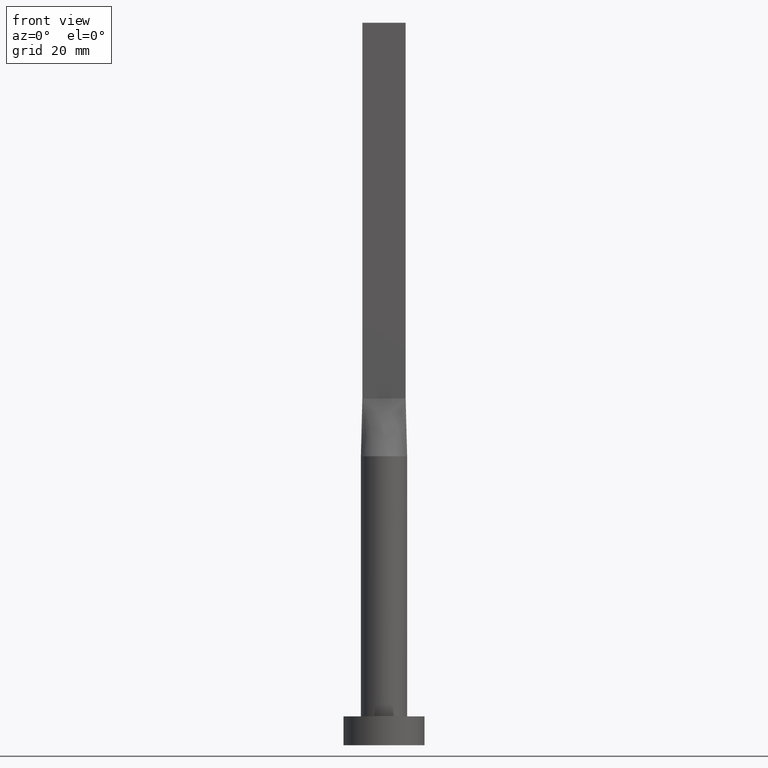
[diagram: clean part render]
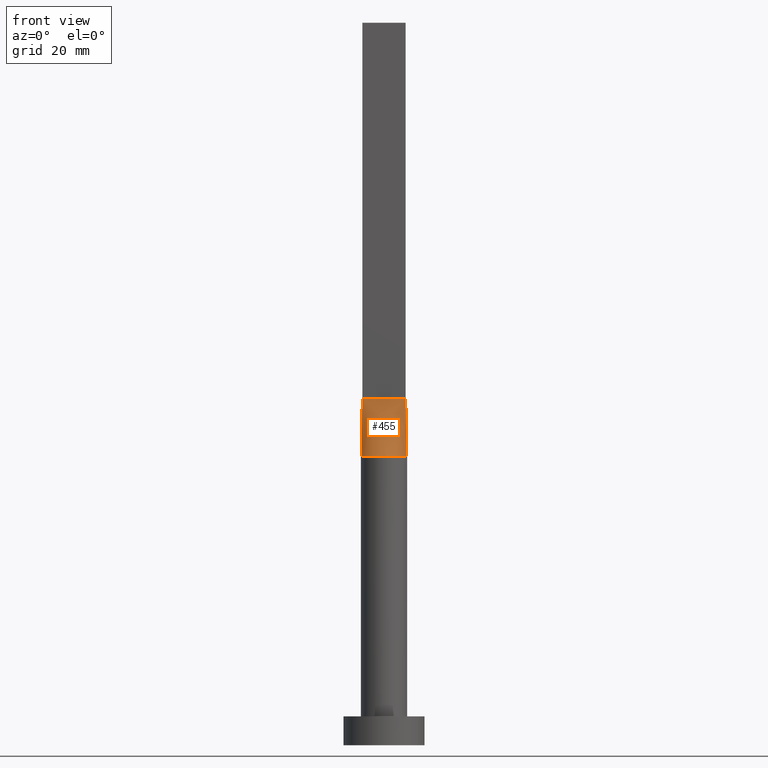
[diagram: same view with one face highlighted and labeled with its STEP entity id]
A machine part, front view. The second image highlights one B-rep face of the part: STEP entity #455.
In plain terms, the highlighted face is a freeform B-spline surface patch.
Its self-contained STEP definition (entity closure, byte-faithful):
#2 = CARTESIAN_POINT ( 'NONE',  ( -3.950111798046394007, -0.6320171791297864994, 49.99999999999999289 ) ) ;
#4 = VECTOR ( 'NONE', #518, 1000.000000000000000 ) ;
#10 = CARTESIAN_POINT ( 'NONE',  ( -3.750000000000000000, -0.5999999999999993117, 60.00000000000000000 ) ) ;
#20 = CARTESIAN_POINT ( 'NONE',  ( -2.500000000000000000, -0.5999999999999994227, 60.00000000000000000 ) ) ;
#24 = B_SPLINE_SURFACE_WITH_KNOTS ( 'NONE', 3, 1, ( 
 ( #411, #10 ),
 ( #377, #157 ),
 ( #243, #504 ),
 ( #420, #20 ),
 ( #549, #64 ),
 ( #201, #330 ),
 ( #110, #286 ),
 ( #479, #87 ),
 ( #142, #33 ),
 ( #212, #353 ),
 ( #398, #476 ),
 ( #579, #346 ),
 ( #184, #522 ),
 ( #83, #137 ),
 ( #395, #263 ),
 ( #42, #519 ),
 ( #299, #389 ),
 ( #526, #133 ) ),
 .UNSPECIFIED., .F., .F., .F.,
 ( 4, 2, 2, 2, 2, 2, 2, 2, 4 ),
 ( 2, 2 ),
 ( 0.000000000000000000, 0.1250000000000000555, 0.2500000000000001110, 0.3750000000000001665, 0.5000000000000001110, 0.6250000000000001110, 0.7500000000000001110, 0.8750000000000000000, 1.000000000000000000 ),
 ( 0.000000000000000000, 1.000000000000000000 ),
 .UNSPECIFIED. ) ;
#33 = CARTESIAN_POINT ( 'NONE',  ( -0.3125000000000008327, -0.5999999999999995337, 60.00000000000000000 ) ) ;
#42 = CARTESIAN_POINT ( 'NONE',  ( 3.800365609718893367, -1.311488165564686614, 49.99999999999998579 ) ) ;
#44 = LINE ( 'NONE', #268, #4 ) ;
#60 = CARTESIAN_POINT ( 'NONE',  ( -3.750000000000000000, -0.5999999999999993117, 60.00000000000000000 ) ) ;
#64 = CARTESIAN_POINT ( 'NONE',  ( -2.187500000000000000, -0.5999999999999994227, 60.00000000000000000 ) ) ;
#67 = EDGE_CURVE ( 'NONE', #386, #580, #554, .T. ) ;
#83 = CARTESIAN_POINT ( 'NONE',  ( 3.219262664220059023, -2.422342486356523938, 50.00000000000000000 ) ) ;
#87 = CARTESIAN_POINT ( 'NONE',  ( -0.6250000000000004441, -0.5999999999999994227, 60.00000000000000000 ) ) ;
#110 = CARTESIAN_POINT ( 'NONE',  ( -2.127794970397209884, -3.430476893735947996, 50.00000000000000000 ) ) ;
#133 = CARTESIAN_POINT ( 'NONE',  ( 3.750000000000000000, -0.5999999999999997558, 60.00000000000000000 ) ) ;
#134 = VERTEX_POINT ( 'NONE', #252 ) ;
#136 = CARTESIAN_POINT ( 'NONE',  ( -3.750000000000000000, -0.5999999999999993117, 60.00000000000000000 ) ) ;
#137 = CARTESIAN_POINT ( 'NONE',  ( 2.187499999999999556, -0.5999999999999996447, 60.00000000000000000 ) ) ;
#142 = CARTESIAN_POINT ( 'NONE',  ( -0.5684794080625156232, -4.000000000000000000, 49.99999999999998579 ) ) ;
#154 = VECTOR ( 'NONE', #468, 1000.000000000000000 ) ;
#157 = CARTESIAN_POINT ( 'NONE',  ( -3.437500000000000000, -0.5999999999999993117, 60.00000000000000000 ) ) ;
#184 = CARTESIAN_POINT ( 'NONE',  ( 2.553164211252348270, -3.116528153703943094, 49.99999999999999289 ) ) ;
#201 = CARTESIAN_POINT ( 'NONE',  ( -2.553164211252349158, -3.116528153703943094, 50.00000000000000711 ) ) ;
#204 = EDGE_CURVE ( 'NONE', #134, #363, #44, .T. ) ;
#207 = ORIENTED_EDGE ( 'NONE', *, *, #332, .T. ) ;
#212 = CARTESIAN_POINT ( 'NONE',  ( 0.5684794080625150681, -4.000000000000000888, 49.99999999999999289 ) ) ;
#235 = FACE_OUTER_BOUND ( 'NONE', #396, .T. ) ;
#237 = DIRECTION ( 'NONE',  ( 1.000000000000000000, 0.000000000000000000, 0.000000000000000000 ) ) ;
#243 = CARTESIAN_POINT ( 'NONE',  ( -3.800365609718892923, -1.311488165564685726, 49.99999999999998579 ) ) ;
#244 = VECTOR ( 'NONE', #356, 1000.000000000000000 ) ;
#246 = EDGE_CURVE ( 'NONE', #386, #363, #262, .T. ) ;
#252 = CARTESIAN_POINT ( 'NONE',  ( 3.950116941581656604, -0.6320178829360036943, 49.99999999999999289 ) ) ;
#262 = LINE ( 'NONE', #136, #244 ) ;
#263 = CARTESIAN_POINT ( 'NONE',  ( 2.499999999999998668, -0.5999999999999996447, 60.00000000000000000 ) ) ;
#268 = CARTESIAN_POINT ( 'NONE',  ( 3.849881263833410561, -0.6159810022133445084, 54.99999999999999289 ) ) ;
#272 = DIRECTION ( 'NONE',  ( 0.000000000000000000, 0.000000000000000000, 1.000000000000000000 ) ) ;
#286 = CARTESIAN_POINT ( 'NONE',  ( -1.250000000000000222, -0.5999999999999994227, 60.00000000000000000 ) ) ;
#299 = CARTESIAN_POINT ( 'NONE',  ( 3.897760447583619836, -0.9569750049467118380, 50.00000000000000711 ) ) ;
#330 = CARTESIAN_POINT ( 'NONE',  ( -1.562500000000000000, -0.5999999999999994227, 60.00000000000000000 ) ) ;
#332 = EDGE_CURVE ( 'NONE', #580, #134, #501, .T. ) ;
#336 = CARTESIAN_POINT ( 'NONE',  ( -3.849881263833410561, -0.6159810022133443974, 54.99999999999999289 ) ) ;
#346 = CARTESIAN_POINT ( 'NONE',  ( 1.249999999999999556, -0.5999999999999996447, 59.99999999999999289 ) ) ;
#353 = CARTESIAN_POINT ( 'NONE',  ( 0.3124999999999991118, -0.5999999999999995337, 59.99999999999999289 ) ) ;
#356 = DIRECTION ( 'NONE',  ( 1.000000000000000000, -5.782411586589357392E-17, 0.000000000000000000 ) ) ;
#358 = ORIENTED_EDGE ( 'NONE', *, *, #204, .T. ) ;
#363 = VERTEX_POINT ( 'NONE', #404 ) ;
#377 = CARTESIAN_POINT ( 'NONE',  ( -3.897760447583618948, -0.9569750049467102837, 49.99999999999999289 ) ) ;
#386 = VERTEX_POINT ( 'NONE', #60 ) ;
#389 = CARTESIAN_POINT ( 'NONE',  ( 3.437499999999999556, -0.5999999999999996447, 60.00000000000000000 ) ) ;
#395 = CARTESIAN_POINT ( 'NONE',  ( 3.461914487322980349, -2.043998057340943753, 50.00000000000000711 ) ) ;
#396 = EDGE_LOOP ( 'NONE', ( #207, #358, #409, #474 ) ) ;
#398 = CARTESIAN_POINT ( 'NONE',  ( 1.134810363096319108, -3.874001625491798162, 50.00000000000000000 ) ) ;
#404 = CARTESIAN_POINT ( 'NONE',  ( 3.750000000000000000, -0.5999999999999997558, 60.00000000000000000 ) ) ;
#409 = ORIENTED_EDGE ( 'NONE', *, *, #246, .F. ) ;
#411 = CARTESIAN_POINT ( 'NONE',  ( -3.949762527666821565, -0.6319620044266894832, 49.99999999999999289 ) ) ;
#420 = CARTESIAN_POINT ( 'NONE',  ( -3.461914487322979905, -2.043998057340941976, 49.99999999999999289 ) ) ;
#455 = ADVANCED_FACE ( 'NONE', ( #235 ), #24, .T. ) ;
#463 = CARTESIAN_POINT ( 'NONE',  ( 0.000000000000000000, 0.000000000000000000, 49.99999999999999289 ) ) ;
#468 = DIRECTION ( 'NONE',  ( -0.01997216621675832263, -0.003195546594681204517, -0.9997954296047624201 ) ) ;
#474 = ORIENTED_EDGE ( 'NONE', *, *, #67, .T. ) ;
#476 = CARTESIAN_POINT ( 'NONE',  ( 0.6249999999999993339, -0.5999999999999995337, 59.99999999999999289 ) ) ;
#479 = CARTESIAN_POINT ( 'NONE',  ( -1.134810363096319996, -3.874001625491796830, 49.99999999999999289 ) ) ;
#491 = AXIS2_PLACEMENT_3D ( 'NONE', #463, #272, #237 ) ;
#501 = CIRCLE ( 'NONE', #491, 4.000000000000000000 ) ;
#504 = CARTESIAN_POINT ( 'NONE',  ( -3.125000000000000000, -0.5999999999999993117, 60.00000000000000000 ) ) ;
#518 = DIRECTION ( 'NONE',  ( -0.01997216621675832263, 0.003195546594681128623, 0.9997954296047624201 ) ) ;
#519 = CARTESIAN_POINT ( 'NONE',  ( 3.124999999999999112, -0.5999999999999996447, 60.00000000000000000 ) ) ;
#522 = CARTESIAN_POINT ( 'NONE',  ( 1.562499999999999556, -0.5999999999999996447, 59.99999999999999289 ) ) ;
#526 = CARTESIAN_POINT ( 'NONE',  ( 3.949762527666821565, -0.6319620044266891501, 49.99999999999999289 ) ) ;
#549 = CARTESIAN_POINT ( 'NONE',  ( -3.219262664220059023, -2.422342486356523050, 49.99999999999999289 ) ) ;
#554 = LINE ( 'NONE', #336, #154 ) ;
#579 = CARTESIAN_POINT ( 'NONE',  ( 2.127794970397208552, -3.430476893735948440, 49.99999999999998579 ) ) ;
#580 = VERTEX_POINT ( 'NONE', #2 ) ;